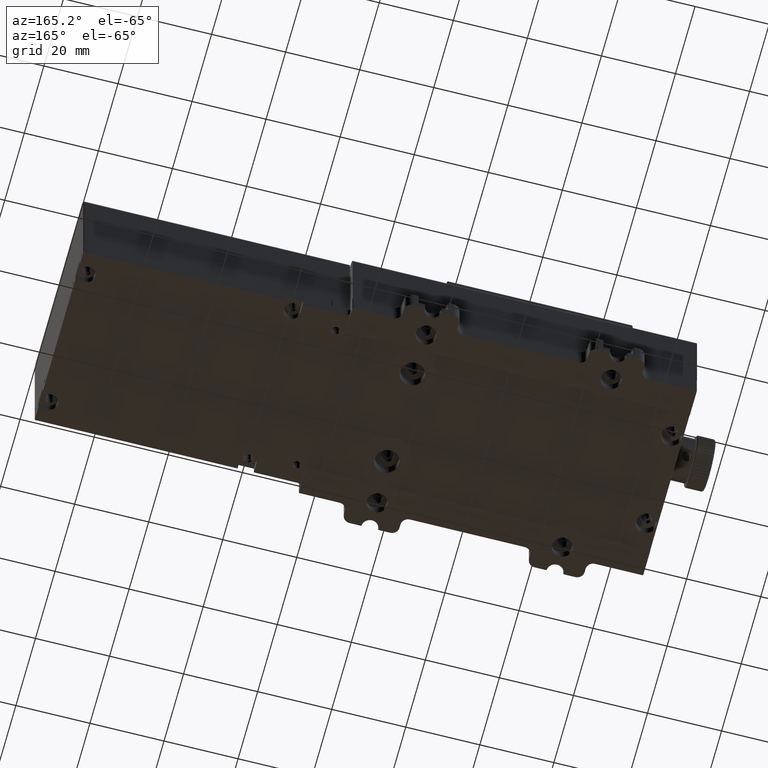
[diagram: clean part render]
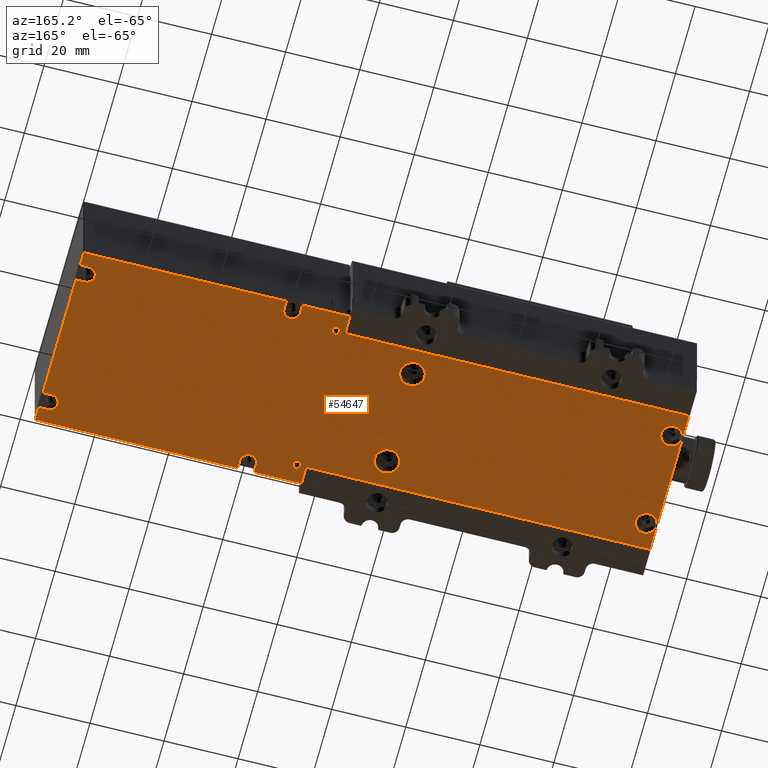
[diagram: same view with one face highlighted and labeled with its STEP entity id]
A machine part, auxiliary view. The second image highlights one B-rep face of the part: STEP entity #54647.
In plain terms, the highlighted planar face has unit normal (0, 0, -1).
Its self-contained STEP definition (entity closure, byte-faithful):
#259 = VERTEX_POINT ( 'NONE', #34544 ) ;
#270 = DIRECTION ( 'NONE',  ( 0.000000000000000000, -1.000000000000000000, 0.000000000000000000 ) ) ;
#832 = CARTESIAN_POINT ( 'NONE',  ( 71.19188844109010006, 43.25842696629215567, -4.500000000000000000 ) ) ;
#880 = EDGE_CURVE ( 'NONE', #71032, #1601, #41548, .T. ) ;
#1331 = VECTOR ( 'NONE', #63881, 1000.000000000000000 ) ;
#1601 = VERTEX_POINT ( 'NONE', #68171 ) ;
#2359 = ORIENTED_EDGE ( 'NONE', *, *, #46506, .F. ) ;
#2408 = CARTESIAN_POINT ( 'NONE',  ( 6.389887640449450679, 44.25842696629215567, -4.500000000000000000 ) ) ;
#2429 = EDGE_CURVE ( 'NONE', #74679, #63692, #56533, .T. ) ;
#2529 = CARTESIAN_POINT ( 'NONE',  ( 7.414887640449451034, 4.258426966292124582, -4.500000000000000000 ) ) ;
#3449 = DIRECTION ( 'NONE',  ( -1.000000000000000000, 0.000000000000000000, 0.000000000000000000 ) ) ;
#3893 = CARTESIAN_POINT ( 'NONE',  ( -12.76011235955055945, 11.25842696629212014, -4.500000000000000000 ) ) ;
#3958 = ORIENTED_EDGE ( 'NONE', *, *, #6588, .T. ) ;
#3992 = ORIENTED_EDGE ( 'NONE', *, *, #18928, .F. ) ;
#4334 = DIRECTION ( 'NONE',  ( -1.000000000000000000, 0.000000000000000000, 0.000000000000000000 ) ) ;
#4738 = ORIENTED_EDGE ( 'NONE', *, *, #13209, .T. ) ;
#5172 = CARTESIAN_POINT ( 'NONE',  ( -16.11011235955055199, 11.25842696629212014, -4.500000000000000000 ) ) ;
#5387 = FACE_BOUND ( 'NONE', #34027, .T. ) ;
#5982 = DIRECTION ( 'NONE',  ( -1.000000000000000000, 0.000000000000000000, 0.000000000000000000 ) ) ;
#5993 = EDGE_CURVE ( 'NONE', #6520, #34684, #82185, .T. ) ;
#6520 = VERTEX_POINT ( 'NONE', #19306 ) ;
#6525 = AXIS2_PLACEMENT_3D ( 'NONE', #21975, #46799, #3449 ) ;
#6588 = EDGE_CURVE ( 'NONE', #55373, #72577, #72349, .T. ) ;
#7311 = VECTOR ( 'NONE', #8223, 1000.000000000000000 ) ;
#7865 = CIRCLE ( 'NONE', #6525, 2.199999999999993516 ) ;
#7916 = ORIENTED_EDGE ( 'NONE', *, *, #82579, .T. ) ;
#8063 = EDGE_CURVE ( 'NONE', #77542, #67382, #25944, .T. ) ;
#8223 = DIRECTION ( 'NONE',  ( 0.000000000000000000, 1.000000000000000000, 0.000000000000000000 ) ) ;
#8483 = DIRECTION ( 'NONE',  ( -1.000000000000000000, 0.000000000000000000, 0.000000000000000000 ) ) ;
#8706 = VECTOR ( 'NONE', #82804, 1000.000000000000000 ) ;
#8765 = DIRECTION ( 'NONE',  ( -1.000000000000000000, 0.000000000000000000, 0.000000000000000000 ) ) ;
#8885 = CIRCLE ( 'NONE', #72021, 1.024999999999999911 ) ;
#8886 = CARTESIAN_POINT ( 'NONE',  ( 21.08455335863069990, 46.91153603016489626, -4.500000000000000000 ) ) ;
#9372 = DIRECTION ( 'NONE',  ( 0.000000000000000000, -1.000000000000000000, 0.000000000000000000 ) ) ;
#9505 = DIRECTION ( 'NONE',  ( 0.000000000000000000, 0.000000000000000000, 1.000000000000000000 ) ) ;
#9533 = EDGE_LOOP ( 'NONE', ( #22048, #3958 ) ) ;
#9904 = CARTESIAN_POINT ( 'NONE',  ( -16.11011235955055199, 37.25842696629215567, -4.500000000000000000 ) ) ;
#10283 = LINE ( 'NONE', #36327, #46707 ) ;
#10449 = VERTEX_POINT ( 'NONE', #11930 ) ;
#10803 = LINE ( 'NONE', #69256, #55694 ) ;
#11440 = CARTESIAN_POINT ( 'NONE',  ( -86.11011235955049870, 11.25842696629212014, -4.500000000000000000 ) ) ;
#11592 = CIRCLE ( 'NONE', #74735, 2.850000000000005418 ) ;
#11684 = VERTEX_POINT ( 'NONE', #27028 ) ;
#11930 = CARTESIAN_POINT ( 'NONE',  ( -89.01011235955050438, 44.25842696629215567, -4.500000000000000000 ) ) ;
#12071 = DIRECTION ( 'NONE',  ( -1.224646799147351975E-16, 1.000000000000000000, 0.000000000000000000 ) ) ;
#12186 = LINE ( 'NONE', #37817, #1331 ) ;
#13209 = EDGE_CURVE ( 'NONE', #65943, #56769, #61353, .T. ) ;
#13466 = DIRECTION ( 'NONE',  ( 0.000000000000000000, 1.000000000000000000, 0.000000000000000000 ) ) ;
#13949 = LINE ( 'NONE', #40444, #76286 ) ;
#14195 = EDGE_LOOP ( 'NONE', ( #72130, #44787 ) ) ;
#14257 = VERTEX_POINT ( 'NONE', #33658 ) ;
#14318 = DIRECTION ( 'NONE',  ( 0.000000000000000000, 0.000000000000000000, 1.000000000000000000 ) ) ;
#14588 = VERTEX_POINT ( 'NONE', #74388 ) ;
#14746 = DIRECTION ( 'NONE',  ( -1.000000000000000000, 0.000000000000000000, 0.000000000000000000 ) ) ;
#14899 = AXIS2_PLACEMENT_3D ( 'NONE', #16678, #23007, #67973 ) ;
#14960 = VECTOR ( 'NONE', #13466, 1000.000000000000000 ) ;
#15181 = CARTESIAN_POINT ( 'NONE',  ( 16.68988764044945228, 46.75842696629209172, -4.500000000000000000 ) ) ;
#15213 = CARTESIAN_POINT ( 'NONE',  ( 6.389887640449450679, 44.25842696629215567, -4.500000000000000000 ) ) ;
#15483 = CARTESIAN_POINT ( 'NONE',  ( 75.78988764044949278, 41.05842696629215283, -4.500000000000000000 ) ) ;
#15664 = EDGE_CURVE ( 'NONE', #63356, #59342, #27467, .T. ) ;
#15926 = CARTESIAN_POINT ( 'NONE',  ( -86.11011235955049870, 37.25842696629215567, -4.500000000000000000 ) ) ;
#16373 = DIRECTION ( 'NONE',  ( 1.000000000000000000, 0.000000000000000000, 0.000000000000000000 ) ) ;
#16397 = EDGE_CURVE ( 'NONE', #22527, #67382, #13949, .T. ) ;
#16467 = ORIENTED_EDGE ( 'NONE', *, *, #17723, .F. ) ;
#16678 = CARTESIAN_POINT ( 'NONE',  ( 18.88988764044944801, 46.75842696629209172, -4.500000000000000000 ) ) ;
#16743 = DIRECTION ( 'NONE',  ( 0.000000000000000000, 0.000000000000000000, -1.000000000000000000 ) ) ;
#16893 = DIRECTION ( 'NONE',  ( -1.000000000000000000, 0.000000000000000000, 0.000000000000000000 ) ) ;
#17041 = VECTOR ( 'NONE', #9372, 1000.000000000000000 ) ;
#17210 = CARTESIAN_POINT ( 'NONE',  ( 75.78988764044949278, 49.25842696629209883, -4.500000000000000000 ) ) ;
#17394 = ORIENTED_EDGE ( 'NONE', *, *, #2429, .F. ) ;
#17610 = CARTESIAN_POINT ( 'NONE',  ( 21.08988764044944730, 1.758426966292130134, -4.500000000000000000 ) ) ;
#17618 = CARTESIAN_POINT ( 'NONE',  ( 21.08455335863069990, 46.75842696629209172, -4.500000000000000000 ) ) ;
#17723 = EDGE_CURVE ( 'NONE', #52464, #48379, #66524, .T. ) ;
#17793 = CARTESIAN_POINT ( 'NONE',  ( 6.389887640449450679, 4.258426966292124582, -4.500000000000000000 ) ) ;
#18130 = CARTESIAN_POINT ( 'NONE',  ( 73.38988764044950130, 5.258426966292129912, -4.500000000000000000 ) ) ;
#18678 = AXIS2_PLACEMENT_3D ( 'NONE', #54363, #48069, #80430 ) ;
#18766 = CARTESIAN_POINT ( 'NONE',  ( 16.68988764044945228, 46.75842696629209172, -4.500000000000000000 ) ) ;
#18898 = CARTESIAN_POINT ( 'NONE',  ( 16.68988764044945228, 49.15842696629209740, -4.500000000000000000 ) ) ;
#18928 = EDGE_CURVE ( 'NONE', #1601, #22527, #82835, .T. ) ;
#19198 = EDGE_CURVE ( 'NONE', #34684, #6520, #33205, .T. ) ;
#19285 = VERTEX_POINT ( 'NONE', #2529 ) ;
#19306 = CARTESIAN_POINT ( 'NONE',  ( -83.26011235955050438, 11.25842696629212014, -4.500000000000000000 ) ) ;
#19385 = EDGE_CURVE ( 'NONE', #36898, #74679, #75211, .T. ) ;
#20215 = CARTESIAN_POINT ( 'NONE',  ( 5.364887640449459205, 4.258426966292124582, -4.500000000000000000 ) ) ;
#20855 = CARTESIAN_POINT ( 'NONE',  ( 3.889887640449464890, 49.25842696629209883, -4.500000000000000000 ) ) ;
#20882 = CARTESIAN_POINT ( 'NONE',  ( 75.78988764044949278, 7.458426966292130089, -4.500000000000000000 ) ) ;
#21149 = VERTEX_POINT ( 'NONE', #832 ) ;
#21975 = CARTESIAN_POINT ( 'NONE',  ( 73.39188844109010290, 43.25842696629215567, -4.500000000000000000 ) ) ;
#22048 = ORIENTED_EDGE ( 'NONE', *, *, #32583, .T. ) ;
#22343 = DIRECTION ( 'NONE',  ( 0.000000000000000000, 1.000000000000000000, 0.000000000000000000 ) ) ;
#22527 = VERTEX_POINT ( 'NONE', #66952 ) ;
#23007 = DIRECTION ( 'NONE',  ( 0.000000000000000000, 0.000000000000000000, -1.000000000000000000 ) ) ;
#23901 = DIRECTION ( 'NONE',  ( -1.000000000000000000, 0.000000000000000000, 0.000000000000000000 ) ) ;
#24312 = FACE_OUTER_BOUND ( 'NONE', #80144, .T. ) ;
#25166 = LINE ( 'NONE', #58317, #54313 ) ;
#25409 = CIRCLE ( 'NONE', #38818, 3.349999999999998757 ) ;
#25420 = LINE ( 'NONE', #77925, #69370 ) ;
#25944 = LINE ( 'NONE', #77655, #80951 ) ;
#26685 = CARTESIAN_POINT ( 'NONE',  ( 3.889887640449464890, -0.6415730337078550116, -4.500000000000000000 ) ) ;
#26848 = VECTOR ( 'NONE', #22343, 1000.000000000000000 ) ;
#26981 = CARTESIAN_POINT ( 'NONE',  ( 75.78988764044949278, -0.6415730337078550116, -4.500000000000000000 ) ) ;
#27028 = CARTESIAN_POINT ( 'NONE',  ( -89.01011235955050438, 4.258426966292124582, -4.500000000000000000 ) ) ;
#27428 = VECTOR ( 'NONE', #32677, 1000.000000000000000 ) ;
#27467 = LINE ( 'NONE', #45961, #17041 ) ;
#27580 = CIRCLE ( 'NONE', #77206, 2.199999999999993516 ) ;
#27641 = CARTESIAN_POINT ( 'NONE',  ( 18.88988764044944801, 1.758426966292130134, -4.500000000000000000 ) ) ;
#27935 = EDGE_CURVE ( 'NONE', #44184, #21149, #27580, .T. ) ;
#28068 = DIRECTION ( 'NONE',  ( 0.000000000000000000, 0.000000000000000000, -1.000000000000000000 ) ) ;
#28392 = EDGE_CURVE ( 'NONE', #14257, #46390, #41089, .T. ) ;
#28876 = DIRECTION ( 'NONE',  ( -1.000000000000000000, 0.000000000000000000, 0.000000000000000000 ) ) ;
#28923 = CARTESIAN_POINT ( 'NONE',  ( 73.38988764044950130, 3.058426966292119964, -4.500000000000000000 ) ) ;
#28954 = ORIENTED_EDGE ( 'NONE', *, *, #68081, .F. ) ;
#29150 = CARTESIAN_POINT ( 'NONE',  ( 21.08988764044944730, -0.6415730337078550116, -4.500000000000000000 ) ) ;
#29197 = AXIS2_PLACEMENT_3D ( 'NONE', #58882, #14318, #66856 ) ;
#29838 = CARTESIAN_POINT ( 'NONE',  ( 6.389887640449450679, 4.258426966292124582, -4.500000000000000000 ) ) ;
#29862 = LINE ( 'NONE', #42908, #55883 ) ;
#30389 = EDGE_CURVE ( 'NONE', #60665, #59342, #81510, .T. ) ;
#30667 = DIRECTION ( 'NONE',  ( 0.000000000000000000, -1.000000000000000000, 0.000000000000000000 ) ) ;
#30862 = ORIENTED_EDGE ( 'NONE', *, *, #40203, .T. ) ;
#30898 = CARTESIAN_POINT ( 'NONE',  ( 75.78988764044949278, 49.15842696629209740, -4.500000000000000000 ) ) ;
#31136 = VERTEX_POINT ( 'NONE', #62358 ) ;
#31485 = LINE ( 'NONE', #44921, #49225 ) ;
#32583 = EDGE_CURVE ( 'NONE', #72577, #55373, #11592, .T. ) ;
#32677 = DIRECTION ( 'NONE',  ( -1.000000000000000000, 0.000000000000000000, 0.000000000000000000 ) ) ;
#32718 = EDGE_CURVE ( 'NONE', #10449, #81459, #31485, .T. ) ;
#33031 = VERTEX_POINT ( 'NONE', #54965 ) ;
#33088 = ORIENTED_EDGE ( 'NONE', *, *, #81360, .T. ) ;
#33205 = CIRCLE ( 'NONE', #29197, 2.850000000000005418 ) ;
#33227 = ORIENTED_EDGE ( 'NONE', *, *, #60885, .T. ) ;
#33658 = CARTESIAN_POINT ( 'NONE',  ( -12.76011235955055945, 37.25842696629215567, -4.500000000000000000 ) ) ;
#34027 = EDGE_LOOP ( 'NONE', ( #69146, #54172 ) ) ;
#34045 = VERTEX_POINT ( 'NONE', #20215 ) ;
#34393 = VERTEX_POINT ( 'NONE', #52390 ) ;
#34544 = CARTESIAN_POINT ( 'NONE',  ( 16.68988764044945228, -0.6415730337078550116, -4.500000000000000000 ) ) ;
#34548 = DIRECTION ( 'NONE',  ( 1.000000000000000000, 0.000000000000000000, 0.000000000000000000 ) ) ;
#34593 = ORIENTED_EDGE ( 'NONE', *, *, #880, .F. ) ;
#34625 = CARTESIAN_POINT ( 'NONE',  ( 73.39188844109010290, 45.45842696629209456, -4.500000000000000000 ) ) ;
#34684 = VERTEX_POINT ( 'NONE', #63640 ) ;
#34821 = CARTESIAN_POINT ( 'NONE',  ( -16.11011235955055199, 37.25842696629215567, -4.500000000000000000 ) ) ;
#35209 = DIRECTION ( 'NONE',  ( 0.000000000000000000, 0.000000000000000000, 1.000000000000000000 ) ) ;
#35415 = CIRCLE ( 'NONE', #77016, 3.349999999999998757 ) ;
#36064 = VERTEX_POINT ( 'NONE', #3893 ) ;
#36298 = CARTESIAN_POINT ( 'NONE',  ( -83.26011235955050438, 37.25842696629215567, -4.500000000000000000 ) ) ;
#36327 = CARTESIAN_POINT ( 'NONE',  ( 3.889887640449464890, -0.6415730337078550116, -4.500000000000000000 ) ) ;
#36498 = VECTOR ( 'NONE', #62574, 1000.000000000000000 ) ;
#36898 = VERTEX_POINT ( 'NONE', #63245 ) ;
#37139 = ORIENTED_EDGE ( 'NONE', *, *, #67739, .F. ) ;
#37244 = EDGE_LOOP ( 'NONE', ( #2359, #16467 ) ) ;
#37279 = CIRCLE ( 'NONE', #45324, 2.200000000000000622 ) ;
#37416 = CARTESIAN_POINT ( 'NONE',  ( 16.68988764044945228, 1.758426966292130134, -4.500000000000000000 ) ) ;
#37817 = CARTESIAN_POINT ( 'NONE',  ( 73.39188844109010290, 41.05842696629215283, -4.500000000000000000 ) ) ;
#38013 = ORIENTED_EDGE ( 'NONE', *, *, #48360, .F. ) ;
#38533 = EDGE_CURVE ( 'NONE', #36064, #33031, #55729, .T. ) ;
#38818 = AXIS2_PLACEMENT_3D ( 'NONE', #34821, #35209, #40698 ) ;
#39203 = AXIS2_PLACEMENT_3D ( 'NONE', #11440, #81672, #80815 ) ;
#39250 = ORIENTED_EDGE ( 'NONE', *, *, #16397, .F. ) ;
#39600 = AXIS2_PLACEMENT_3D ( 'NONE', #17793, #43436, #4334 ) ;
#39958 = CARTESIAN_POINT ( 'NONE',  ( 3.889887640449464890, 49.25842696629209883, -4.500000000000000000 ) ) ;
#40203 = EDGE_CURVE ( 'NONE', #36898, #65943, #25420, .T. ) ;
#40444 = CARTESIAN_POINT ( 'NONE',  ( 73.38988764044950130, 7.458426966292130089, -4.500000000000000000 ) ) ;
#40698 = DIRECTION ( 'NONE',  ( -1.000000000000000000, 0.000000000000000000, 0.000000000000000000 ) ) ;
#41089 = CIRCLE ( 'NONE', #81147, 3.349999999999998757 ) ;
#41548 = CIRCLE ( 'NONE', #18678, 2.199999999999993516 ) ;
#42407 = FACE_BOUND ( 'NONE', #57425, .T. ) ;
#42505 = CARTESIAN_POINT ( 'NONE',  ( 73.39188844109010290, 41.05842696629215283, -4.500000000000000000 ) ) ;
#42908 = CARTESIAN_POINT ( 'NONE',  ( 75.88988764044950130, 49.15842696629209740, -4.500000000000000000 ) ) ;
#43436 = DIRECTION ( 'NONE',  ( 0.000000000000000000, 0.000000000000000000, -1.000000000000000000 ) ) ;
#43513 = ORIENTED_EDGE ( 'NONE', *, *, #69487, .T. ) ;
#44184 = VERTEX_POINT ( 'NONE', #42505 ) ;
#44621 = EDGE_CURVE ( 'NONE', #80483, #71032, #48703, .T. ) ;
#44672 = EDGE_CURVE ( 'NONE', #31136, #11684, #25166, .T. ) ;
#44728 = DIRECTION ( 'NONE',  ( 1.000000000000000000, 0.000000000000000000, 0.000000000000000000 ) ) ;
#44787 = ORIENTED_EDGE ( 'NONE', *, *, #65735, .F. ) ;
#44921 = CARTESIAN_POINT ( 'NONE',  ( 3.889887640449464890, 44.25842696629215567, -4.500000000000000000 ) ) ;
#44935 = ORIENTED_EDGE ( 'NONE', *, *, #27935, .F. ) ;
#45004 = EDGE_CURVE ( 'NONE', #19285, #34045, #47653, .T. ) ;
#45324 = AXIS2_PLACEMENT_3D ( 'NONE', #27641, #59164, #59571 ) ;
#45833 = LINE ( 'NONE', #39958, #14960 ) ;
#45917 = DIRECTION ( 'NONE',  ( 0.000000000000000000, 0.000000000000000000, -1.000000000000000000 ) ) ;
#45961 = CARTESIAN_POINT ( 'NONE',  ( 21.08988764044944730, 1.758426966292130134, -4.500000000000000000 ) ) ;
#46390 = VERTEX_POINT ( 'NONE', #67951 ) ;
#46506 = EDGE_CURVE ( 'NONE', #48379, #52464, #8885, .T. ) ;
#46707 = VECTOR ( 'NONE', #61153, 1000.000000000000000 ) ;
#46799 = DIRECTION ( 'NONE',  ( 0.000000000000000000, 0.000000000000000000, -1.000000000000000000 ) ) ;
#47101 = ORIENTED_EDGE ( 'NONE', *, *, #19385, .F. ) ;
#47169 = EDGE_CURVE ( 'NONE', #59263, #56769, #47919, .T. ) ;
#47539 = VECTOR ( 'NONE', #76102, 1000.000000000000000 ) ;
#47543 = LINE ( 'NONE', #15181, #26848 ) ;
#47606 = CARTESIAN_POINT ( 'NONE',  ( 7.414887640449451034, 44.25842696629215567, -4.500000000000000000 ) ) ;
#47653 = CIRCLE ( 'NONE', #39600, 1.024999999999999911 ) ;
#47919 = LINE ( 'NONE', #80283, #55996 ) ;
#48069 = DIRECTION ( 'NONE',  ( 0.000000000000000000, 0.000000000000000000, -1.000000000000000000 ) ) ;
#48166 = AXIS2_PLACEMENT_3D ( 'NONE', #15926, #52909, #8765 ) ;
#48360 = EDGE_CURVE ( 'NONE', #21149, #59263, #7865, .T. ) ;
#48379 = VERTEX_POINT ( 'NONE', #47606 ) ;
#48703 = LINE ( 'NONE', #74348, #27428 ) ;
#49120 = PLANE ( 'NONE',  #59371 ) ;
#49173 = VECTOR ( 'NONE', #68892, 1000.000000000000000 ) ;
#49225 = VECTOR ( 'NONE', #81937, 1000.000000000000000 ) ;
#49260 = CARTESIAN_POINT ( 'NONE',  ( 75.78988764044949278, 45.45842696629209456, -4.500000000000000000 ) ) ;
#49526 = ORIENTED_EDGE ( 'NONE', *, *, #77185, .F. ) ;
#49939 = DIRECTION ( 'NONE',  ( 0.000000000000000000, -1.000000000000000000, 0.000000000000000000 ) ) ;
#50079 = ORIENTED_EDGE ( 'NONE', *, *, #47169, .F. ) ;
#50121 = DIRECTION ( 'NONE',  ( 0.000000000000000000, 0.000000000000000000, 1.000000000000000000 ) ) ;
#50362 = FACE_BOUND ( 'NONE', #78494, .T. ) ;
#50450 = CARTESIAN_POINT ( 'NONE',  ( 75.78988764044949278, 49.25842696629209883, -4.500000000000000000 ) ) ;
#50867 = AXIS2_PLACEMENT_3D ( 'NONE', #29838, #75231, #81555 ) ;
#52390 = CARTESIAN_POINT ( 'NONE',  ( 16.68988764044945228, 1.758426966292130134, -4.500000000000000000 ) ) ;
#52464 = VERTEX_POINT ( 'NONE', #57113 ) ;
#52565 = DIRECTION ( 'NONE',  ( 0.000000000000000000, 0.000000000000000000, 1.000000000000000000 ) ) ;
#52788 = LINE ( 'NONE', #20855, #7311 ) ;
#52909 = DIRECTION ( 'NONE',  ( 0.000000000000000000, 0.000000000000000000, 1.000000000000000000 ) ) ;
#53134 = AXIS2_PLACEMENT_3D ( 'NONE', #15213, #45917, #8483 ) ;
#53749 = ORIENTED_EDGE ( 'NONE', *, *, #44621, .F. ) ;
#53821 = CARTESIAN_POINT ( 'NONE',  ( -16.11011235955055199, 11.25842696629212014, -4.500000000000000000 ) ) ;
#54172 = ORIENTED_EDGE ( 'NONE', *, *, #5993, .T. ) ;
#54313 = VECTOR ( 'NONE', #70531, 1000.000000000000000 ) ;
#54363 = CARTESIAN_POINT ( 'NONE',  ( 73.38988764044950130, 5.258426966292129912, -4.500000000000000000 ) ) ;
#54647 = ADVANCED_FACE ( 'NONE', ( #42407, #50362, #62985, #5387, #75585, #74768, #24312 ), #49120, .T. ) ;
#54965 = CARTESIAN_POINT ( 'NONE',  ( -19.46011235955054985, 11.25842696629212014, -4.500000000000000000 ) ) ;
#55373 = VERTEX_POINT ( 'NONE', #36298 ) ;
#55694 = VECTOR ( 'NONE', #12071, 1000.000000000000000 ) ;
#55711 = ORIENTED_EDGE ( 'NONE', *, *, #58510, .T. ) ;
#55729 = CIRCLE ( 'NONE', #77228, 3.349999999999998757 ) ;
#55883 = VECTOR ( 'NONE', #61807, 1000.000000000000000 ) ;
#55996 = VECTOR ( 'NONE', #16373, 1000.000000000000000 ) ;
#56101 = ORIENTED_EDGE ( 'NONE', *, *, #8063, .T. ) ;
#56277 = DIRECTION ( 'NONE',  ( 0.000000000000000000, 0.000000000000000000, -1.000000000000000000 ) ) ;
#56288 = CARTESIAN_POINT ( 'NONE',  ( 3.889887640449464890, -0.6415730337078550116, -4.500000000000000000 ) ) ;
#56335 = ORIENTED_EDGE ( 'NONE', *, *, #62240, .F. ) ;
#56533 = CIRCLE ( 'NONE', #14899, 2.200000000000000622 ) ;
#56769 = VERTEX_POINT ( 'NONE', #49260 ) ;
#56975 = EDGE_CURVE ( 'NONE', #33031, #36064, #35415, .T. ) ;
#57113 = CARTESIAN_POINT ( 'NONE',  ( 5.364887640449459205, 44.25842696629215567, -4.500000000000000000 ) ) ;
#57425 = EDGE_LOOP ( 'NONE', ( #58728, #77128 ) ) ;
#58186 = VERTEX_POINT ( 'NONE', #18898 ) ;
#58317 = CARTESIAN_POINT ( 'NONE',  ( 3.889887640449464890, 4.258426966292124582, -4.500000000000000000 ) ) ;
#58510 = EDGE_CURVE ( 'NONE', #11684, #10449, #10803, .T. ) ;
#58728 = ORIENTED_EDGE ( 'NONE', *, *, #56975, .T. ) ;
#58882 = CARTESIAN_POINT ( 'NONE',  ( -86.11011235955049870, 11.25842696629212014, -4.500000000000000000 ) ) ;
#59164 = DIRECTION ( 'NONE',  ( 0.000000000000000000, 0.000000000000000000, -1.000000000000000000 ) ) ;
#59185 = ORIENTED_EDGE ( 'NONE', *, *, #32718, .T. ) ;
#59263 = VERTEX_POINT ( 'NONE', #34625 ) ;
#59342 = VERTEX_POINT ( 'NONE', #29150 ) ;
#59371 = AXIS2_PLACEMENT_3D ( 'NONE', #68054, #56277, #49939 ) ;
#59571 = DIRECTION ( 'NONE',  ( -1.000000000000000000, 0.000000000000000000, 0.000000000000000000 ) ) ;
#60665 = VERTEX_POINT ( 'NONE', #26981 ) ;
#60885 = EDGE_CURVE ( 'NONE', #14588, #58186, #29862, .T. ) ;
#61153 = DIRECTION ( 'NONE',  ( -1.000000000000000000, 0.000000000000000000, 0.000000000000000000 ) ) ;
#61353 = LINE ( 'NONE', #17210, #82840 ) ;
#61807 = DIRECTION ( 'NONE',  ( 1.000000000000000000, 0.000000000000000000, 0.000000000000000000 ) ) ;
#61842 = ORIENTED_EDGE ( 'NONE', *, *, #28392, .T. ) ;
#62240 = EDGE_CURVE ( 'NONE', #34393, #63356, #37279, .T. ) ;
#62358 = CARTESIAN_POINT ( 'NONE',  ( 3.889887640449464890, 4.258426966292124582, -4.500000000000000000 ) ) ;
#62574 = DIRECTION ( 'NONE',  ( -1.000000000000000000, 0.000000000000000000, 0.000000000000000000 ) ) ;
#62985 = FACE_BOUND ( 'NONE', #9533, .T. ) ;
#63245 = CARTESIAN_POINT ( 'NONE',  ( 21.08455335863069990, 49.15842696629209740, -4.500000000000000000 ) ) ;
#63356 = VERTEX_POINT ( 'NONE', #17610 ) ;
#63640 = CARTESIAN_POINT ( 'NONE',  ( -88.96011235955060670, 11.25842696629212014, -4.500000000000000000 ) ) ;
#63692 = VERTEX_POINT ( 'NONE', #18766 ) ;
#63881 = DIRECTION ( 'NONE',  ( -1.000000000000000000, 0.000000000000000000, 0.000000000000000000 ) ) ;
#65735 = EDGE_CURVE ( 'NONE', #34045, #19285, #76374, .T. ) ;
#65943 = VERTEX_POINT ( 'NONE', #30898 ) ;
#66524 = CIRCLE ( 'NONE', #53134, 1.024999999999999911 ) ;
#66856 = DIRECTION ( 'NONE',  ( -1.000000000000000000, 0.000000000000000000, 0.000000000000000000 ) ) ;
#66952 = CARTESIAN_POINT ( 'NONE',  ( 73.38988764044950130, 7.458426966292130089, -4.500000000000000000 ) ) ;
#67382 = VERTEX_POINT ( 'NONE', #20882 ) ;
#67462 = CARTESIAN_POINT ( 'NONE',  ( 3.889887640449464890, 44.25842696629215567, -4.500000000000000000 ) ) ;
#67739 = EDGE_CURVE ( 'NONE', #63692, #58186, #47543, .T. ) ;
#67951 = CARTESIAN_POINT ( 'NONE',  ( -19.46011235955054985, 37.25842696629215567, -4.500000000000000000 ) ) ;
#67973 = DIRECTION ( 'NONE',  ( -1.000000000000000000, 0.000000000000000000, 0.000000000000000000 ) ) ;
#68054 = CARTESIAN_POINT ( 'NONE',  ( -89.11011235955059817, 49.25842696629209883, -4.500000000000000000 ) ) ;
#68081 = EDGE_CURVE ( 'NONE', #77542, #44184, #12186, .T. ) ;
#68171 = CARTESIAN_POINT ( 'NONE',  ( 71.18988764044951267, 5.258426966292129912, -4.500000000000000000 ) ) ;
#68358 = DIRECTION ( 'NONE',  ( -1.000000000000000000, 0.000000000000000000, 0.000000000000000000 ) ) ;
#68892 = DIRECTION ( 'NONE',  ( 0.000000000000000000, -1.000000000000000000, 0.000000000000000000 ) ) ;
#69146 = ORIENTED_EDGE ( 'NONE', *, *, #19198, .T. ) ;
#69256 = CARTESIAN_POINT ( 'NONE',  ( -89.01011235955050438, 44.25842696629215567, -4.500000000000000000 ) ) ;
#69370 = VECTOR ( 'NONE', #44728, 1000.000000000000000 ) ;
#69487 = EDGE_CURVE ( 'NONE', #79292, #31136, #45833, .T. ) ;
#69929 = ORIENTED_EDGE ( 'NONE', *, *, #44672, .T. ) ;
#70531 = DIRECTION ( 'NONE',  ( -1.000000000000000000, 0.000000000000000000, 0.000000000000000000 ) ) ;
#71009 = CARTESIAN_POINT ( 'NONE',  ( -88.96011235955060670, 37.25842696629215567, -4.500000000000000000 ) ) ;
#71032 = VERTEX_POINT ( 'NONE', #28923 ) ;
#71291 = ORIENTED_EDGE ( 'NONE', *, *, #15664, .F. ) ;
#72021 = AXIS2_PLACEMENT_3D ( 'NONE', #2408, #28068, #28876 ) ;
#72130 = ORIENTED_EDGE ( 'NONE', *, *, #45004, .F. ) ;
#72349 = CIRCLE ( 'NONE', #48166, 2.850000000000005418 ) ;
#72438 = CARTESIAN_POINT ( 'NONE',  ( 75.78988764044949278, 3.058426966292119964, -4.500000000000000000 ) ) ;
#72501 = ORIENTED_EDGE ( 'NONE', *, *, #76719, .T. ) ;
#72577 = VERTEX_POINT ( 'NONE', #71009 ) ;
#72728 = ORIENTED_EDGE ( 'NONE', *, *, #74934, .T. ) ;
#73148 = DIRECTION ( 'NONE',  ( 0.000000000000000000, 0.000000000000000000, 1.000000000000000000 ) ) ;
#73823 = ORIENTED_EDGE ( 'NONE', *, *, #30389, .T. ) ;
#73980 = DIRECTION ( 'NONE',  ( -1.000000000000000000, 0.000000000000000000, 0.000000000000000000 ) ) ;
#74334 = CARTESIAN_POINT ( 'NONE',  ( 73.39188844109010290, 43.25842696629215567, -4.500000000000000000 ) ) ;
#74348 = CARTESIAN_POINT ( 'NONE',  ( 73.38988764044950130, 3.058426966292119964, -4.500000000000000000 ) ) ;
#74388 = CARTESIAN_POINT ( 'NONE',  ( 3.889887640449464890, 49.15842696629209740, -4.500000000000000000 ) ) ;
#74679 = VERTEX_POINT ( 'NONE', #8886 ) ;
#74735 = AXIS2_PLACEMENT_3D ( 'NONE', #74803, #73148, #73980 ) ;
#74768 = FACE_BOUND ( 'NONE', #37244, .T. ) ;
#74803 = CARTESIAN_POINT ( 'NONE',  ( -86.11011235955049870, 37.25842696629215567, -4.500000000000000000 ) ) ;
#74829 = LINE ( 'NONE', #37416, #8706 ) ;
#74934 = EDGE_CURVE ( 'NONE', #80483, #60665, #82395, .T. ) ;
#75211 = LINE ( 'NONE', #17618, #49173 ) ;
#75231 = DIRECTION ( 'NONE',  ( 0.000000000000000000, 0.000000000000000000, -1.000000000000000000 ) ) ;
#75585 = FACE_BOUND ( 'NONE', #14195, .T. ) ;
#76102 = DIRECTION ( 'NONE',  ( 0.000000000000000000, -1.000000000000000000, 0.000000000000000000 ) ) ;
#76286 = VECTOR ( 'NONE', #34548, 1000.000000000000000 ) ;
#76374 = CIRCLE ( 'NONE', #50867, 1.024999999999999911 ) ;
#76719 = EDGE_CURVE ( 'NONE', #81459, #14588, #52788, .T. ) ;
#77016 = AXIS2_PLACEMENT_3D ( 'NONE', #53821, #52565, #14746 ) ;
#77128 = ORIENTED_EDGE ( 'NONE', *, *, #38533, .T. ) ;
#77185 = EDGE_CURVE ( 'NONE', #259, #34393, #74829, .T. ) ;
#77206 = AXIS2_PLACEMENT_3D ( 'NONE', #74334, #16743, #23901 ) ;
#77228 = AXIS2_PLACEMENT_3D ( 'NONE', #5172, #50121, #5982 ) ;
#77542 = VERTEX_POINT ( 'NONE', #15483 ) ;
#77655 = CARTESIAN_POINT ( 'NONE',  ( 75.78988764044949278, 49.25842696629209883, -4.500000000000000000 ) ) ;
#77925 = CARTESIAN_POINT ( 'NONE',  ( 75.88988764044950130, 49.15842696629209740, -4.500000000000000000 ) ) ;
#78494 = EDGE_LOOP ( 'NONE', ( #7916, #61842 ) ) ;
#79292 = VERTEX_POINT ( 'NONE', #26685 ) ;
#80144 = EDGE_LOOP ( 'NONE', ( #69929, #55711, #59185, #72501, #33227, #37139, #17394, #47101, #30862, #4738, #50079, #38013, #44935, #28954, #56101, #39250, #3992, #34593, #53749, #72728, #73823, #71291, #56335, #49526, #33088, #43513 ) ) ;
#80147 = AXIS2_PLACEMENT_3D ( 'NONE', #18130, #80386, #16893 ) ;
#80283 = CARTESIAN_POINT ( 'NONE',  ( 73.39188844109010290, 45.45842696629209456, -4.500000000000000000 ) ) ;
#80386 = DIRECTION ( 'NONE',  ( 0.000000000000000000, 0.000000000000000000, -1.000000000000000000 ) ) ;
#80430 = DIRECTION ( 'NONE',  ( -1.000000000000000000, 0.000000000000000000, 0.000000000000000000 ) ) ;
#80483 = VERTEX_POINT ( 'NONE', #72438 ) ;
#80815 = DIRECTION ( 'NONE',  ( -1.000000000000000000, 0.000000000000000000, 0.000000000000000000 ) ) ;
#80951 = VECTOR ( 'NONE', #270, 1000.000000000000000 ) ;
#81147 = AXIS2_PLACEMENT_3D ( 'NONE', #9904, #9505, #68358 ) ;
#81360 = EDGE_CURVE ( 'NONE', #259, #79292, #10283, .T. ) ;
#81459 = VERTEX_POINT ( 'NONE', #67462 ) ;
#81510 = LINE ( 'NONE', #56288, #36498 ) ;
#81555 = DIRECTION ( 'NONE',  ( -1.000000000000000000, 0.000000000000000000, 0.000000000000000000 ) ) ;
#81672 = DIRECTION ( 'NONE',  ( 0.000000000000000000, 0.000000000000000000, 1.000000000000000000 ) ) ;
#81937 = DIRECTION ( 'NONE',  ( 1.000000000000000000, 2.797941090285174562E-17, 0.000000000000000000 ) ) ;
#82185 = CIRCLE ( 'NONE', #39203, 2.850000000000005418 ) ;
#82395 = LINE ( 'NONE', #50450, #47539 ) ;
#82579 = EDGE_CURVE ( 'NONE', #46390, #14257, #25409, .T. ) ;
#82804 = DIRECTION ( 'NONE',  ( 0.000000000000000000, 1.000000000000000000, 0.000000000000000000 ) ) ;
#82835 = CIRCLE ( 'NONE', #80147, 2.199999999999993516 ) ;
#82840 = VECTOR ( 'NONE', #30667, 1000.000000000000000 ) ;